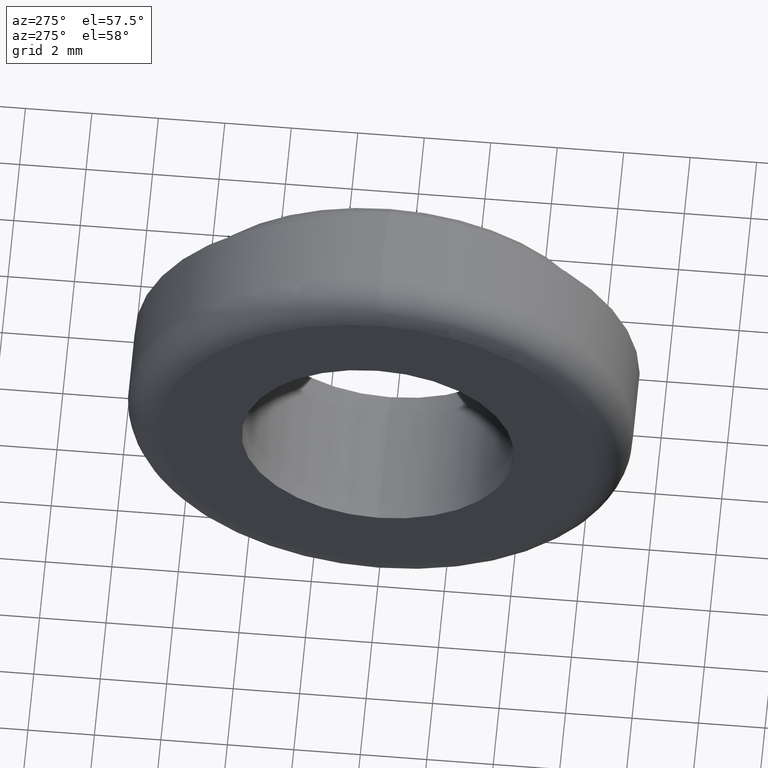
[diagram: clean part render]
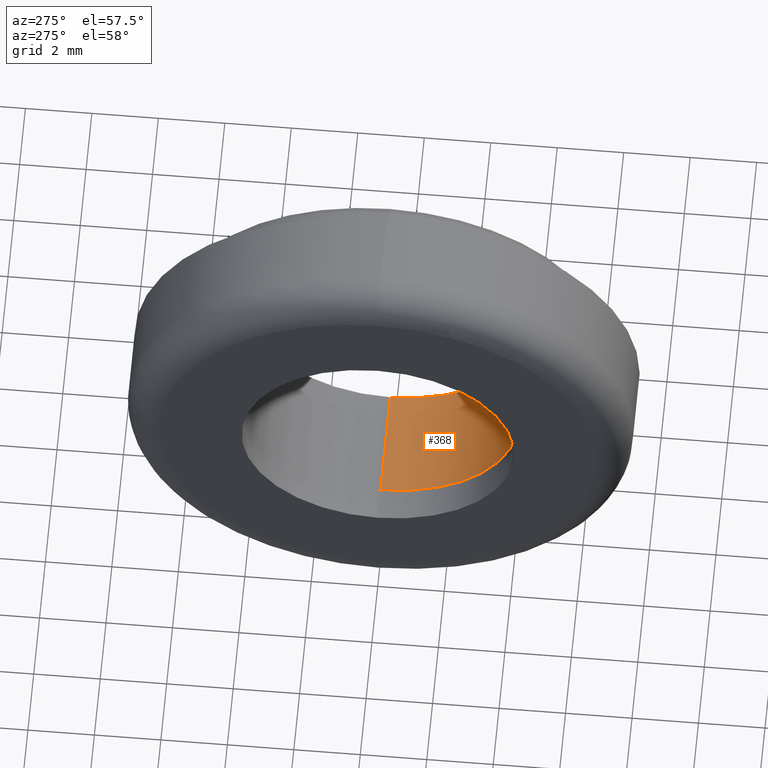
[diagram: same view with one face highlighted and labeled with its STEP entity id]
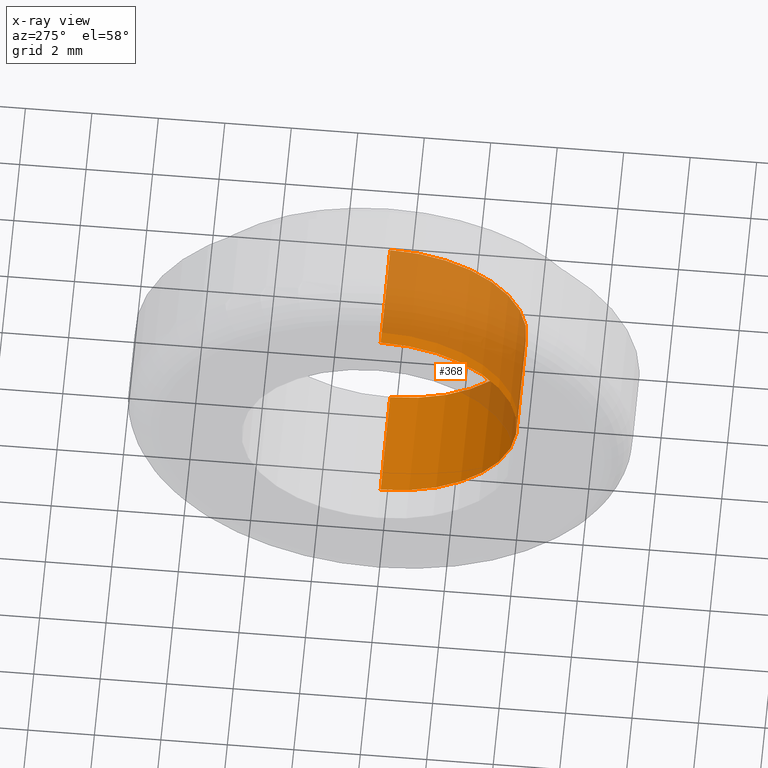
[diagram: x-ray of the same camera — body ghosted, the highlighted face saturated]
A machine part, auxiliary view. The second image highlights one B-rep face of the part: STEP entity #368.
The next image is the same camera in x-ray: the body ghosted, the highlighted face saturated — about 54% of this face is hidden behind the body in this view.
In plain terms, the highlighted cylindrical surface (partial cylindrical patch) has radius 4.1 mm, axis along (-1, -0, -0).
Its self-contained STEP definition (entity closure, byte-faithful):
#4 = VECTOR ( 'NONE', #346, 1000.000000000000000 ) ;
#25 = ORIENTED_EDGE ( 'NONE', *, *, #397, .F. ) ;
#128 = CARTESIAN_POINT ( 'NONE',  ( -88.98999999999999500, 0.0000000000000000000, 0.0000000000000000000 ) ) ;
#130 = CARTESIAN_POINT ( 'NONE',  ( -88.98999999999999500, 5.021051876504147400E-016, -4.099999999999999600 ) ) ;
#154 = DIRECTION ( 'NONE',  ( -1.000000000000000000, -0.0000000000000000000, -0.0000000000000000000 ) ) ;
#186 = ORIENTED_EDGE ( 'NONE', *, *, #209, .T. ) ;
#197 = ORIENTED_EDGE ( 'NONE', *, *, #673, .T. ) ;
#209 = EDGE_CURVE ( 'NONE', #379, #712, #252, .T. ) ;
#227 = CYLINDRICAL_SURFACE ( 'NONE', #614, 4.099999999999999600 ) ;
#232 = LINE ( 'NONE', #544, #361 ) ;
#252 = CIRCLE ( 'NONE', #625, 4.099999999999999600 ) ;
#292 = EDGE_LOOP ( 'NONE', ( #25, #197, #186, #665 ) ) ;
#326 = LINE ( 'NONE', #130, #4 ) ;
#346 = DIRECTION ( 'NONE',  ( -1.000000000000000000, -0.0000000000000000000, -0.0000000000000000000 ) ) ;
#361 = VECTOR ( 'NONE', #507, 1000.000000000000000 ) ;
#365 = DIRECTION ( 'NONE',  ( -1.000000000000000000, -0.0000000000000000000, -0.0000000000000000000 ) ) ;
#368 = ADVANCED_FACE ( 'NONE', ( #508 ), #227, .F. ) ;
#371 = CARTESIAN_POINT ( 'NONE',  ( 0.0000000000000000000, 0.0000000000000000000, 4.099999999999999600 ) ) ;
#375 = VERTEX_POINT ( 'NONE', #458 ) ;
#379 = VERTEX_POINT ( 'NONE', #470 ) ;
#397 = EDGE_CURVE ( 'NONE', #375, #632, #573, .T. ) ;
#406 = CARTESIAN_POINT ( 'NONE',  ( 3.299999999999997200, 0.0000000000000000000, 0.0000000000000000000 ) ) ;
#411 = DIRECTION ( 'NONE',  ( 0.0000000000000000000, 0.0000000000000000000, 1.000000000000000000 ) ) ;
#458 = CARTESIAN_POINT ( 'NONE',  ( 3.299999999999997200, 5.021051876504146400E-016, -4.099999999999998800 ) ) ;
#470 = CARTESIAN_POINT ( 'NONE',  ( 0.0000000000000000000, 5.021051876504147400E-016, -4.099999999999999600 ) ) ;
#487 = DIRECTION ( 'NONE',  ( 0.0000000000000000000, 0.0000000000000000000, 1.000000000000000000 ) ) ;
#507 = DIRECTION ( 'NONE',  ( -1.000000000000000000, -0.0000000000000000000, -0.0000000000000000000 ) ) ;
#508 = FACE_OUTER_BOUND ( 'NONE', #292, .T. ) ;
#538 = AXIS2_PLACEMENT_3D ( 'NONE', #406, #154, #487 ) ;
#544 = CARTESIAN_POINT ( 'NONE',  ( -88.98999999999999500, 0.0000000000000000000, 4.099999999999999600 ) ) ;
#547 = EDGE_CURVE ( 'NONE', #632, #712, #232, .T. ) ;
#557 = CARTESIAN_POINT ( 'NONE',  ( 0.0000000000000000000, 0.0000000000000000000, 0.0000000000000000000 ) ) ;
#573 = CIRCLE ( 'NONE', #538, 4.099999999999998800 ) ;
#614 = AXIS2_PLACEMENT_3D ( 'NONE', #128, #365, #411 ) ;
#625 = AXIS2_PLACEMENT_3D ( 'NONE', #557, #699, #700 ) ;
#632 = VERTEX_POINT ( 'NONE', #662 ) ;
#662 = CARTESIAN_POINT ( 'NONE',  ( 3.299999999999997200, 0.0000000000000000000, 4.099999999999998800 ) ) ;
#665 = ORIENTED_EDGE ( 'NONE', *, *, #547, .F. ) ;
#673 = EDGE_CURVE ( 'NONE', #375, #379, #326, .T. ) ;
#699 = DIRECTION ( 'NONE',  ( -1.000000000000000000, -0.0000000000000000000, -0.0000000000000000000 ) ) ;
#700 = DIRECTION ( 'NONE',  ( 0.0000000000000000000, 0.0000000000000000000, 1.000000000000000000 ) ) ;
#712 = VERTEX_POINT ( 'NONE', #371 ) ;